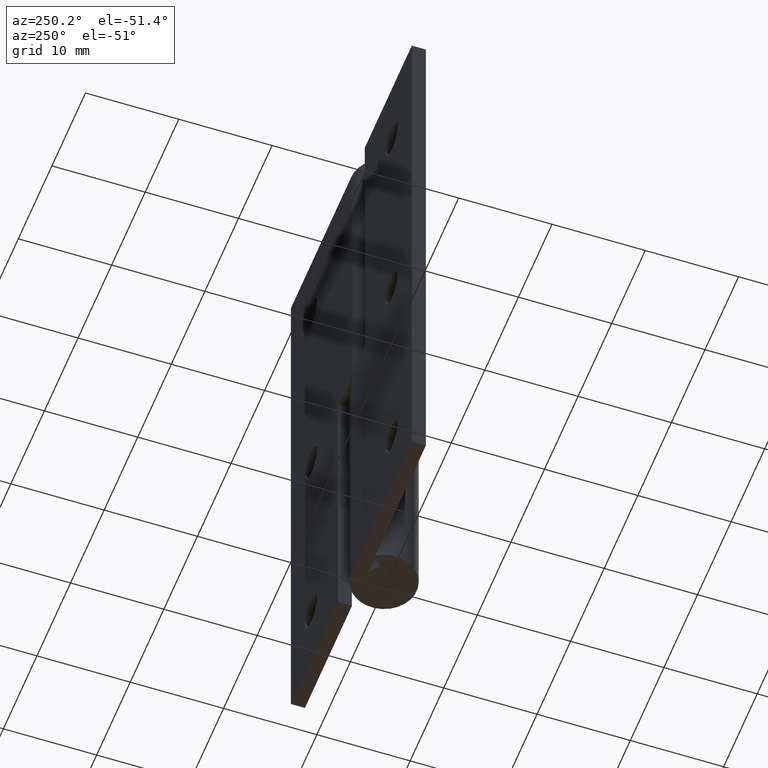
[diagram: clean part render]
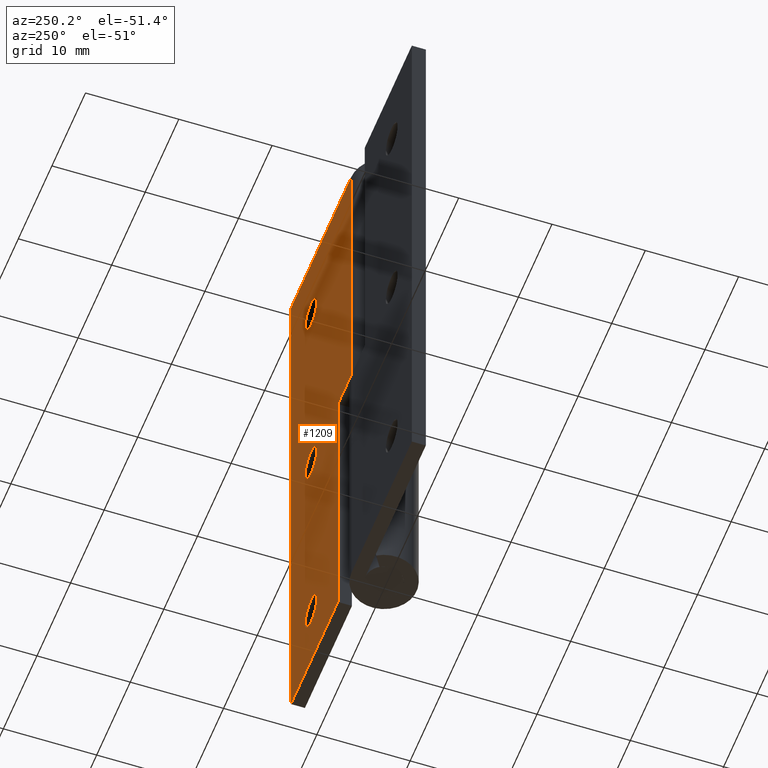
[diagram: same view with one face highlighted and labeled with its STEP entity id]
A machine part, auxiliary view. The second image highlights one B-rep face of the part: STEP entity #1209.
In plain terms, the highlighted face is a freeform B-spline surface patch.
Its self-contained STEP definition (entity closure, byte-faithful):
#332=CARTESIAN_POINT('',(12.0,3.500000000000000,57.750008000000001));
#333=VERTEX_POINT('',#332);
#334=CARTESIAN_POINT('',(13.744605334080100,3.499999999880688,56.137311418445591));
#335=VERTEX_POINT('',#334);
#336=CARTESIAN_POINT('',(12.0,3.500000000000000,57.750008000000001));
#337=CARTESIAN_POINT('',(13.617683358704385,3.500000000000000,57.750008000000008));
#338=CARTESIAN_POINT('',(13.744605334080102,3.499999999880688,56.137311418445591));
#346=(BOUNDED_CURVE()B_SPLINE_CURVE(2,(#336,#337,#338),.UNSPECIFIED.,.F.,.U.)B_SPLINE_CURVE_WITH_KNOTS((3,3),(0.0,0.236331300453441),.UNSPECIFIED.)CURVE()GEOMETRIC_REPRESENTATION_ITEM()RATIONAL_B_SPLINE_CURVE((1.0,0.723120658815290,0.969723355797577))REPRESENTATION_ITEM(''));
#347=EDGE_CURVE('',#333,#335,#346,.T.);
#388=CARTESIAN_POINT('',(10.255394665919900,3.499999999880688,55.862704581554397));
#389=VERTEX_POINT('',#388);
#395=CARTESIAN_POINT('',(10.255394665919898,3.499999999880688,55.862704581554397));
#396=CARTESIAN_POINT('',(10.250000000000000,3.500000000000000,55.931250311819824));
#397=CARTESIAN_POINT('',(10.250000000000000,3.500000000000000,56.000007999999987));
#398=CARTESIAN_POINT('',(10.250000000000000,3.500000000000000,57.750007999999987));
#399=CARTESIAN_POINT('',(12.0,3.500000000000000,57.750008000000001));
#407=(BOUNDED_CURVE()B_SPLINE_CURVE(2,(#395,#396,#397,#398,#399),.UNSPECIFIED.,.F.,.U.)B_SPLINE_CURVE_WITH_KNOTS((3,2,3),(0.736331300453442,0.750000000000000,1.0),.UNSPECIFIED.)CURVE()GEOMETRIC_REPRESENTATION_ITEM()RATIONAL_B_SPLINE_CURVE((0.969723355797578,0.983986122371258,1.0,0.707106781186547,1.0))REPRESENTATION_ITEM(''));
#408=EDGE_CURVE('',#389,#333,#407,.T.);
#431=CARTESIAN_POINT('',(12.0,3.500000000000000,54.250007999999987));
#432=VERTEX_POINT('',#431);
#433=CARTESIAN_POINT('',(13.744605334080102,3.499999999880688,56.137311418445591));
#434=CARTESIAN_POINT('',(13.750000000000005,3.500000000000000,56.068765688180150));
#435=CARTESIAN_POINT('',(13.750000000000000,3.500000000000000,56.000007999999987));
#436=CARTESIAN_POINT('',(13.750000000000000,3.500000000000000,54.250007999999987));
#437=CARTESIAN_POINT('',(12.0,3.500000000000000,54.250007999999987));
#445=(BOUNDED_CURVE()B_SPLINE_CURVE(2,(#433,#434,#435,#436,#437),.UNSPECIFIED.,.F.,.U.)B_SPLINE_CURVE_WITH_KNOTS((3,2,3),(0.236331300453441,0.250000000000000,0.500000000000000),.UNSPECIFIED.)CURVE()GEOMETRIC_REPRESENTATION_ITEM()RATIONAL_B_SPLINE_CURVE((0.969723355797577,0.983986122371258,1.0,0.707106781186547,1.0))REPRESENTATION_ITEM(''));
#446=EDGE_CURVE('',#335,#432,#445,.T.);
#448=CARTESIAN_POINT('',(12.0,3.500000000000000,54.250007999999987));
#449=CARTESIAN_POINT('',(10.382316641295599,3.499999999999999,54.250007999999994));
#450=CARTESIAN_POINT('',(10.255394665919900,3.499999999880688,55.862704581554397));
#458=(BOUNDED_CURVE()B_SPLINE_CURVE(2,(#448,#449,#450),.UNSPECIFIED.,.F.,.U.)B_SPLINE_CURVE_WITH_KNOTS((3,3),(0.500000000000000,0.736331300453443),.UNSPECIFIED.)CURVE()GEOMETRIC_REPRESENTATION_ITEM()RATIONAL_B_SPLINE_CURVE((1.0,0.723120658815288,0.969723355797580))REPRESENTATION_ITEM(''));
#459=EDGE_CURVE('',#432,#389,#458,.T.);
#514=CARTESIAN_POINT('',(12.0,3.500000000000000,33.750008000000008));
#515=VERTEX_POINT('',#514);
#516=CARTESIAN_POINT('',(13.744605334080100,3.499999999880688,32.137311418445599));
#517=VERTEX_POINT('',#516);
#518=CARTESIAN_POINT('',(12.0,3.500000000000000,33.750008000000008));
#519=CARTESIAN_POINT('',(13.617683358704385,3.500000000000000,33.750008000000008));
#520=CARTESIAN_POINT('',(13.744605334080102,3.499999999880688,32.137311418445606));
#528=(BOUNDED_CURVE()B_SPLINE_CURVE(2,(#518,#519,#520),.UNSPECIFIED.,.F.,.U.)B_SPLINE_CURVE_WITH_KNOTS((3,3),(0.0,0.236331300453441),.UNSPECIFIED.)CURVE()GEOMETRIC_REPRESENTATION_ITEM()RATIONAL_B_SPLINE_CURVE((1.0,0.723120658815290,0.969723355797577))REPRESENTATION_ITEM(''));
#529=EDGE_CURVE('',#515,#517,#528,.T.);
#570=CARTESIAN_POINT('',(10.255394665919900,3.499999999880688,31.862704581554400));
#571=VERTEX_POINT('',#570);
#577=CARTESIAN_POINT('',(10.255394665919901,3.499999999880688,31.862704581554397));
#578=CARTESIAN_POINT('',(10.249999999999998,3.500000000000000,31.931250311819841));
#579=CARTESIAN_POINT('',(10.250000000000000,3.500000000000000,32.000008000000001));
#580=CARTESIAN_POINT('',(10.250000000000000,3.500000000000000,33.750008000000001));
#581=CARTESIAN_POINT('',(12.0,3.500000000000000,33.750008000000008));
#589=(BOUNDED_CURVE()B_SPLINE_CURVE(2,(#577,#578,#579,#580,#581),.UNSPECIFIED.,.F.,.U.)B_SPLINE_CURVE_WITH_KNOTS((3,2,3),(0.736331300453441,0.750000000000000,1.0),.UNSPECIFIED.)CURVE()GEOMETRIC_REPRESENTATION_ITEM()RATIONAL_B_SPLINE_CURVE((0.969723355797577,0.983986122371258,1.0,0.707106781186547,1.0))REPRESENTATION_ITEM(''));
#590=EDGE_CURVE('',#571,#515,#589,.T.);
#613=CARTESIAN_POINT('',(12.0,3.500000000000000,30.250008000000001));
#614=VERTEX_POINT('',#613);
#615=CARTESIAN_POINT('',(13.744605334080102,3.499999999880688,32.137311418445606));
#616=CARTESIAN_POINT('',(13.750000000000005,3.500000000000000,32.068765688180164));
#617=CARTESIAN_POINT('',(13.750000000000000,3.500000000000000,32.000008000000001));
#618=CARTESIAN_POINT('',(13.750000000000000,3.500000000000000,30.250008000000001));
#619=CARTESIAN_POINT('',(12.0,3.500000000000000,30.250008000000001));
#627=(BOUNDED_CURVE()B_SPLINE_CURVE(2,(#615,#616,#617,#618,#619),.UNSPECIFIED.,.F.,.U.)B_SPLINE_CURVE_WITH_KNOTS((3,2,3),(0.236331300453441,0.250000000000000,0.500000000000000),.UNSPECIFIED.)CURVE()GEOMETRIC_REPRESENTATION_ITEM()RATIONAL_B_SPLINE_CURVE((0.969723355797577,0.983986122371258,1.0,0.707106781186547,1.0))REPRESENTATION_ITEM(''));
#628=EDGE_CURVE('',#517,#614,#627,.T.);
#630=CARTESIAN_POINT('',(12.0,3.500000000000000,30.250008000000001));
#631=CARTESIAN_POINT('',(10.382316641295620,3.500000000000000,30.250008000000008));
#632=CARTESIAN_POINT('',(10.255394665919901,3.499999999880688,31.862704581554400));
#640=(BOUNDED_CURVE()B_SPLINE_CURVE(2,(#630,#631,#632),.UNSPECIFIED.,.F.,.U.)B_SPLINE_CURVE_WITH_KNOTS((3,3),(0.500000000000000,0.736331300453441),.UNSPECIFIED.)CURVE()GEOMETRIC_REPRESENTATION_ITEM()RATIONAL_B_SPLINE_CURVE((1.0,0.723120658815290,0.969723355797575))REPRESENTATION_ITEM(''));
#641=EDGE_CURVE('',#614,#571,#640,.T.);
#696=CARTESIAN_POINT('',(12.0,3.500000000000000,9.750007999999999));
#697=VERTEX_POINT('',#696);
#698=CARTESIAN_POINT('',(13.744605334080100,3.499999999880689,8.137311418445595));
#699=VERTEX_POINT('',#698);
#700=CARTESIAN_POINT('',(12.0,3.500000000000000,9.750007999999999));
#701=CARTESIAN_POINT('',(13.617683358704390,3.500000000000001,9.750008000000003));
#702=CARTESIAN_POINT('',(13.744605334080104,3.499999999880689,8.137311418445595));
#710=(BOUNDED_CURVE()B_SPLINE_CURVE(2,(#700,#701,#702),.UNSPECIFIED.,.F.,.U.)B_SPLINE_CURVE_WITH_KNOTS((3,3),(0.0,0.236331300453442),.UNSPECIFIED.)CURVE()GEOMETRIC_REPRESENTATION_ITEM()RATIONAL_B_SPLINE_CURVE((1.0,0.723120658815289,0.969723355797577))REPRESENTATION_ITEM(''));
#711=EDGE_CURVE('',#697,#699,#710,.T.);
#752=CARTESIAN_POINT('',(10.255394665919900,3.499999999880688,7.862704581554402));
#753=VERTEX_POINT('',#752);
#759=CARTESIAN_POINT('',(10.255394665919900,3.499999999880688,7.862704581554402));
#760=CARTESIAN_POINT('',(10.249999999999998,3.500000000000000,7.931250311819835));
#761=CARTESIAN_POINT('',(10.250000000000000,3.500000000000000,8.000007999999999));
#762=CARTESIAN_POINT('',(10.250000000000000,3.500000000000000,9.750007999999999));
#763=CARTESIAN_POINT('',(12.0,3.500000000000000,9.750007999999999));
#771=(BOUNDED_CURVE()B_SPLINE_CURVE(2,(#759,#760,#761,#762,#763),.UNSPECIFIED.,.F.,.U.)B_SPLINE_CURVE_WITH_KNOTS((3,2,3),(0.736331300453441,0.750000000000000,1.0),.UNSPECIFIED.)CURVE()GEOMETRIC_REPRESENTATION_ITEM()RATIONAL_B_SPLINE_CURVE((0.969723355797577,0.983986122371258,1.0,0.707106781186547,1.0))REPRESENTATION_ITEM(''));
#772=EDGE_CURVE('',#753,#697,#771,.T.);
#795=CARTESIAN_POINT('',(12.0,3.500000000000000,6.250007999999999));
#796=VERTEX_POINT('',#795);
#797=CARTESIAN_POINT('',(13.744605334080099,3.499999999880689,8.137311418445595));
#798=CARTESIAN_POINT('',(13.750000000000004,3.500000000000000,8.068765688180163));
#799=CARTESIAN_POINT('',(13.750000000000000,3.500000000000000,8.000007999999999));
#800=CARTESIAN_POINT('',(13.750000000000000,3.500000000000000,6.250007999999999));
#801=CARTESIAN_POINT('',(12.0,3.500000000000000,6.250007999999999));
#809=(BOUNDED_CURVE()B_SPLINE_CURVE(2,(#797,#798,#799,#800,#801),.UNSPECIFIED.,.F.,.U.)B_SPLINE_CURVE_WITH_KNOTS((3,2,3),(0.236331300453442,0.250000000000000,0.500000000000000),.UNSPECIFIED.)CURVE()GEOMETRIC_REPRESENTATION_ITEM()RATIONAL_B_SPLINE_CURVE((0.969723355797577,0.983986122371258,1.0,0.707106781186547,1.0))REPRESENTATION_ITEM(''));
#810=EDGE_CURVE('',#699,#796,#809,.T.);
#812=CARTESIAN_POINT('',(12.0,3.500000000000000,6.250007999999999));
#813=CARTESIAN_POINT('',(10.382316641295620,3.500000000000000,6.250007999999999));
#814=CARTESIAN_POINT('',(10.255394665919900,3.499999999880688,7.862704581554402));
#822=(BOUNDED_CURVE()B_SPLINE_CURVE(2,(#812,#813,#814),.UNSPECIFIED.,.F.,.U.)B_SPLINE_CURVE_WITH_KNOTS((3,3),(0.500000000000000,0.736331300453441),.UNSPECIFIED.)CURVE()GEOMETRIC_REPRESENTATION_ITEM()RATIONAL_B_SPLINE_CURVE((1.0,0.723120658815290,0.969723355797575))REPRESENTATION_ITEM(''));
#823=EDGE_CURVE('',#796,#753,#822,.T.);
#874=CARTESIAN_POINT('',(4.0,3.499999999999950,32.000007999999902));
#875=VERTEX_POINT('',#874);
#881=CARTESIAN_POINT('',(4.0,3.499999999999950,0.0));
#882=VERTEX_POINT('',#881);
#883=CARTESIAN_POINT('',(4.0,3.499999999999950,32.000007999999902));
#884=CARTESIAN_POINT('',(4.0,3.499999999999950,0.0));
#885=QUASI_UNIFORM_CURVE('',1,(#883,#884),.UNSPECIFIED.,.F.,.U.);
#886=EDGE_CURVE('',#875,#882,#885,.T.);
#909=CARTESIAN_POINT('',(18.0,3.499999999999950,0.0));
#910=VERTEX_POINT('',#909);
#911=CARTESIAN_POINT('',(4.0,3.499999999999950,0.0));
#912=CARTESIAN_POINT('',(18.0,3.499999999999950,0.0));
#913=QUASI_UNIFORM_CURVE('',1,(#911,#912),.UNSPECIFIED.,.F.,.U.);
#914=EDGE_CURVE('',#882,#910,#913,.T.);
#966=CARTESIAN_POINT('',(18.0,3.500000000000000,64.000008000000093));
#967=VERTEX_POINT('',#966);
#973=CARTESIAN_POINT('',(0.0,3.500000000000000,64.000008000000093));
#974=VERTEX_POINT('',#973);
#975=CARTESIAN_POINT('',(18.0,3.500000000000000,64.000008000000093));
#976=CARTESIAN_POINT('',(0.0,3.500000000000000,64.000008000000093));
#977=QUASI_UNIFORM_CURVE('',1,(#975,#976),.UNSPECIFIED.,.F.,.U.);
#978=EDGE_CURVE('',#967,#974,#977,.T.);
#1026=CARTESIAN_POINT('',(0.0,3.500000000000000,32.000007999999902));
#1027=VERTEX_POINT('',#1026);
#1053=CARTESIAN_POINT('',(0.0,3.500000000000000,64.000008000000093));
#1054=CARTESIAN_POINT('',(0.0,3.500000000000000,32.000007999999902));
#1055=QUASI_UNIFORM_CURVE('',1,(#1053,#1054),.UNSPECIFIED.,.F.,.U.);
#1056=EDGE_CURVE('',#974,#1027,#1055,.T.);
#1072=CARTESIAN_POINT('',(18.0,3.500000000000000,64.000008000000093));
#1073=CARTESIAN_POINT('',(18.0,3.499999999999950,0.0));
#1074=QUASI_UNIFORM_CURVE('',1,(#1072,#1073),.UNSPECIFIED.,.F.,.U.);
#1075=EDGE_CURVE('',#967,#910,#1074,.T.);
#1161=CARTESIAN_POINT('',(4.0,3.499999999999950,32.000007999999902));
#1162=CARTESIAN_POINT('',(0.0,3.500000000000000,32.000007999999902));
#1163=QUASI_UNIFORM_CURVE('',1,(#1161,#1162),.UNSPECIFIED.,.F.,.U.);
#1164=EDGE_CURVE('',#875,#1027,#1163,.T.);
#1178=CARTESIAN_POINT('',(-0.899099965112507,3.500000000000000,67.196808275555668));
#1179=CARTESIAN_POINT('',(-0.899099965112507,3.500000000000000,-3.196801992169553));
#1180=CARTESIAN_POINT('',(18.899100447910129,3.500000000000000,67.196808275555668));
#1181=CARTESIAN_POINT('',(18.899100447910129,3.500000000000000,-3.196801992169553));
#1182=B_SPLINE_SURFACE_WITH_KNOTS('',1,1,((#1178,#1180),(#1179,#1181)),.UNSPECIFIED.,.F.,.F.,.U.,(2,2),(2,2),(0.0,70.393610267725222),(0.0,19.798200413022631),.UNSPECIFIED.);
#1183=ORIENTED_EDGE('',*,*,#1075,.T.);
#1184=ORIENTED_EDGE('',*,*,#914,.F.);
#1185=ORIENTED_EDGE('',*,*,#886,.F.);
#1186=ORIENTED_EDGE('',*,*,#1164,.T.);
#1187=ORIENTED_EDGE('',*,*,#1056,.F.);
#1188=ORIENTED_EDGE('',*,*,#978,.F.);
#1189=EDGE_LOOP('',(#1183,#1184,#1185,#1186,#1187,#1188));
#1190=FACE_OUTER_BOUND('',#1189,.T.);
#1191=ORIENTED_EDGE('',*,*,#823,.F.);
#1192=ORIENTED_EDGE('',*,*,#810,.F.);
#1193=ORIENTED_EDGE('',*,*,#711,.F.);
#1194=ORIENTED_EDGE('',*,*,#772,.F.);
#1195=EDGE_LOOP('',(#1191,#1192,#1193,#1194));
#1196=FACE_BOUND('',#1195,.T.);
#1197=ORIENTED_EDGE('',*,*,#641,.F.);
#1198=ORIENTED_EDGE('',*,*,#628,.F.);
#1199=ORIENTED_EDGE('',*,*,#529,.F.);
#1200=ORIENTED_EDGE('',*,*,#590,.F.);
#1201=EDGE_LOOP('',(#1197,#1198,#1199,#1200));
#1202=FACE_BOUND('',#1201,.T.);
#1203=ORIENTED_EDGE('',*,*,#459,.F.);
#1204=ORIENTED_EDGE('',*,*,#446,.F.);
#1205=ORIENTED_EDGE('',*,*,#347,.F.);
#1206=ORIENTED_EDGE('',*,*,#408,.F.);
#1207=EDGE_LOOP('',(#1203,#1204,#1205,#1206));
#1208=FACE_BOUND('',#1207,.T.);
#1209=ADVANCED_FACE('',(#1190,#1196,#1202,#1208),#1182,.F.);